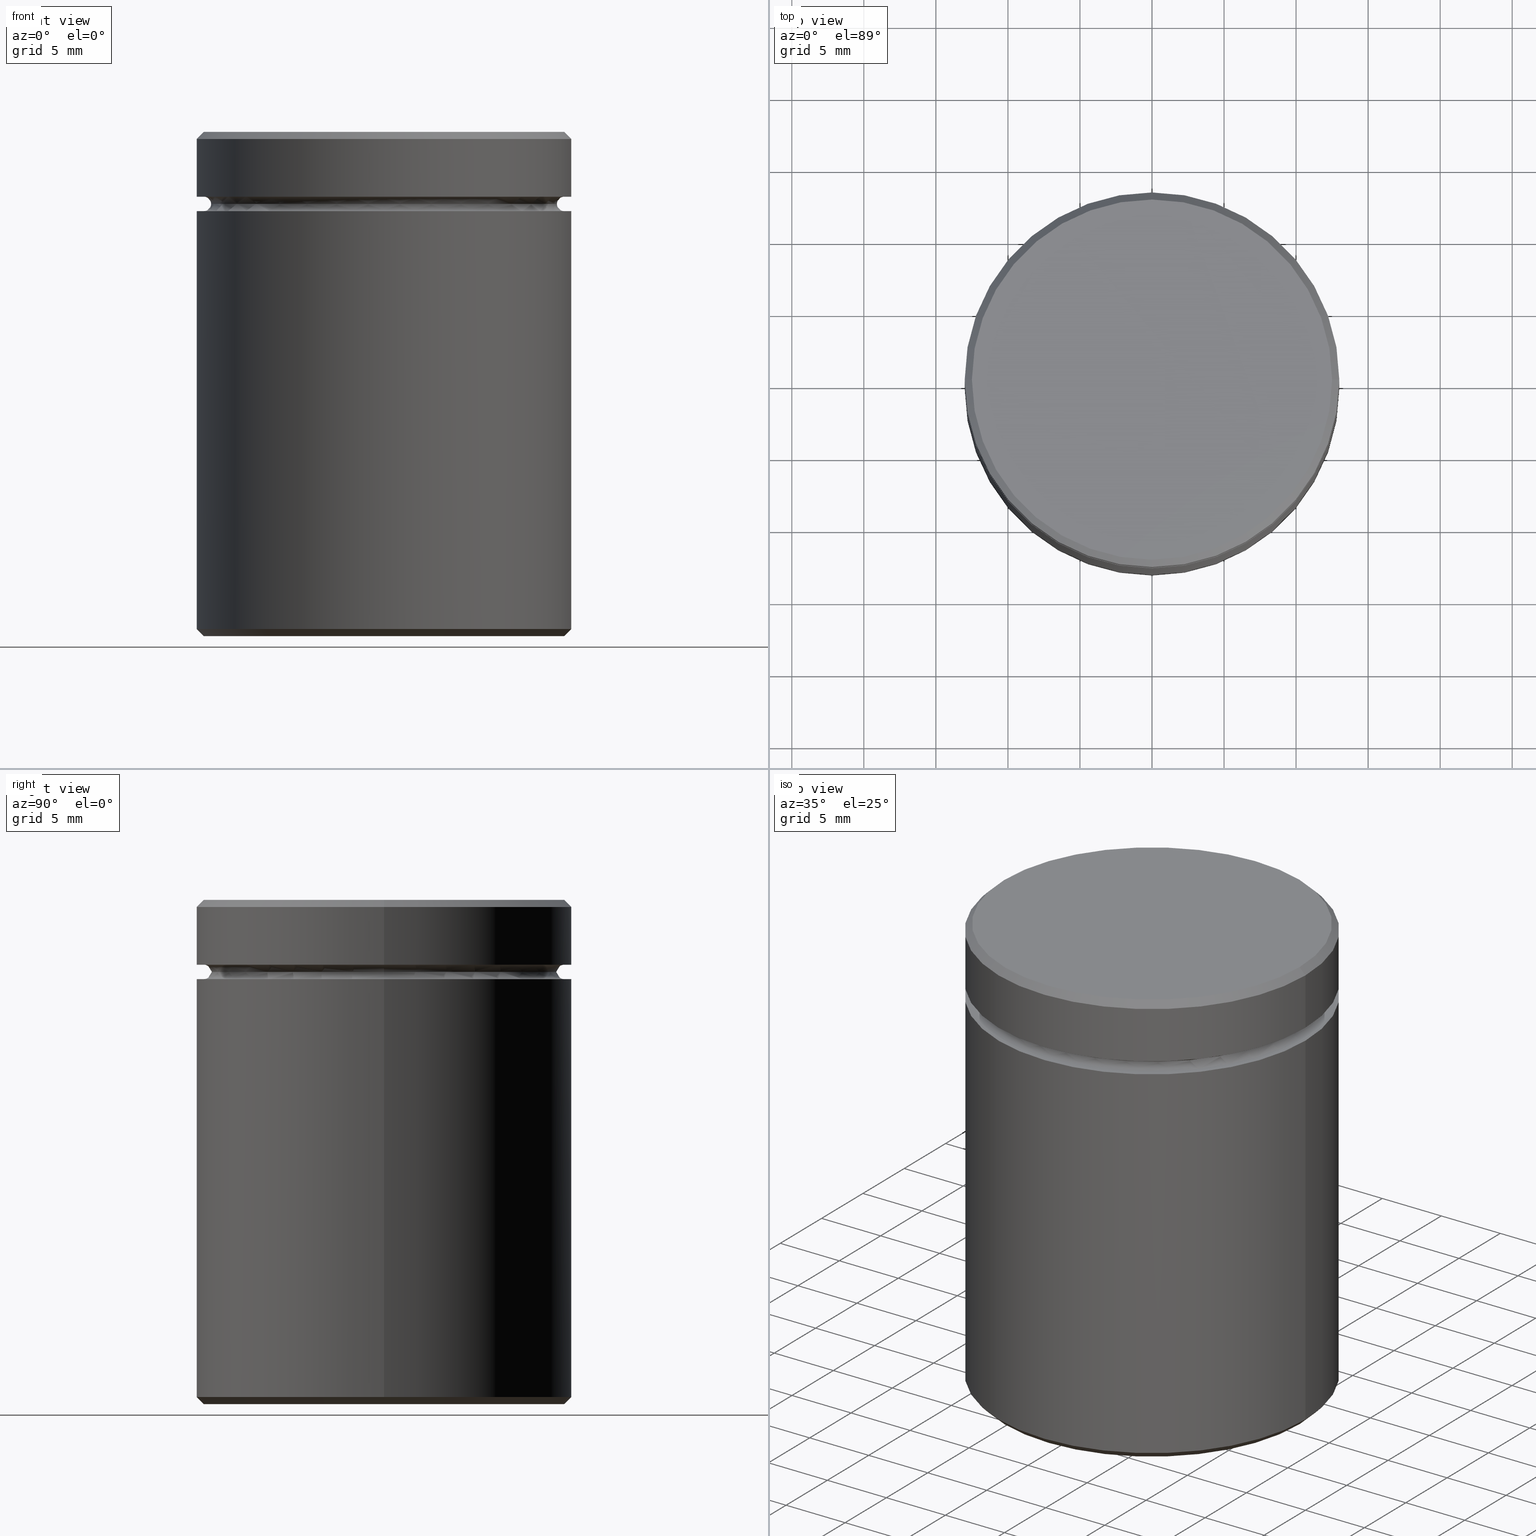
[diagram: canonical four-view strip — front | top / right | iso, engineering-drawing reading convention]
A machine part, canonical four-view strip (front | top / right | iso — engineering-drawing reading convention). The complete STEP part file that produces these views, byte-faithful:
ISO-10303-21;
HEADER;
FILE_DESCRIPTION (( 'STEP AP203' ),
    '1' );
FILE_NAME ('26eb.STEP',
    '2024-01-02T19:38:00',
    ( '' ),
    ( '' ),
    'SwSTEP 2.0',
    'SolidWorks 2019',
    '' );
FILE_SCHEMA (( 'CONFIG_CONTROL_DESIGN' ));
ENDSEC;

DATA;
#1 = DIRECTION ( 'NONE',  ( -1.000000000000000000, 0.000000000000000000, 0.000000000000000000 ) ) ;
#2 = VERTEX_POINT ( 'NONE', #400 ) ;
#3 = CC_DESIGN_PERSON_AND_ORGANIZATION_ASSIGNMENT ( #353, #370, ( #383 ) ) ;
#4 = PLANE ( 'NONE',  #371 ) ;
#5 = CARTESIAN_POINT ( 'NONE',  ( -13.00000000000000000, 1.592040838891559095E-15, -34.49999999999999289 ) ) ;
#6 = VERTEX_POINT ( 'NONE', #184 ) ;
#7 = EDGE_LOOP ( 'NONE', ( #503, #127 ) ) ;
#8 = PRODUCT_DEFINITION_SHAPE ( 'NONE', 'NONE',  #383 ) ;
#9 = EDGE_CURVE ( 'NONE', #316, #37, #460, .T. ) ;
#10 = LINE ( 'NONE', #172, #146 ) ;
#11 = ORIENTED_EDGE ( 'NONE', *, *, #19, .T. ) ;
#12 = CALENDAR_DATE ( 2024, 2, 1 ) ;
#13 = DIRECTION ( 'NONE',  ( 1.000000000000000000, 0.000000000000000000, 0.000000000000000000 ) ) ;
#14 = DIRECTION ( 'NONE',  ( -0.000000000000000000, -0.000000000000000000, 1.000000000000000000 ) ) ;
#15 = CARTESIAN_POINT ( 'NONE',  ( 0.000000000000000000, 0.000000000000000000, -5.000000000000000888 ) ) ;
#16 = AXIS2_PLACEMENT_3D ( 'NONE', #267, #398, #1 ) ;
#17 = CIRCLE ( 'NONE', #110, 7.500000000000000000 ) ;
#18 = DIRECTION ( 'NONE',  ( -0.000000000000000000, -0.000000000000000000, 1.000000000000000000 ) ) ;
#19 = EDGE_CURVE ( 'NONE', #553, #402, #295, .T. ) ;
#20 = DIRECTION ( 'NONE',  ( 0.000000000000000000, 0.000000000000000000, -1.000000000000000000 ) ) ;
#21 = CARTESIAN_POINT ( 'NONE',  ( 0.000000000000000000, 0.000000000000000000, 0.000000000000000000 ) ) ;
#22 = DIRECTION ( 'NONE',  ( -0.000000000000000000, -0.000000000000000000, 1.000000000000000000 ) ) ;
#23 = CC_DESIGN_APPROVAL ( #102, ( #560 ) ) ;
#24 = DIRECTION ( 'NONE',  ( -1.000000000000000000, 0.000000000000000000, 0.000000000000000000 ) ) ;
#25 = AXIS2_PLACEMENT_3D ( 'NONE', #61, #66, #463 ) ;
#26 = CARTESIAN_POINT ( 'NONE',  ( 13.00000000000000000, 0.000000000000000000, -0.5000000000000073275 ) ) ;
#27 = EDGE_CURVE ( 'NONE', #355, #352, #338, .T. ) ;
#28 = DIRECTION ( 'NONE',  ( 1.000000000000000000, 0.000000000000000000, 0.000000000000000000 ) ) ;
#29 = DIRECTION ( 'NONE',  ( -0.000000000000000000, -0.000000000000000000, -1.000000000000000000 ) ) ;
#30 = CIRCLE ( 'NONE', #561, 12.49999999999999112 ) ;
#31 = DIRECTION ( 'NONE',  ( 0.000000000000000000, 0.000000000000000000, -1.000000000000000000 ) ) ;
#32 = EDGE_CURVE ( 'NONE', #37, #316, #491, .T. ) ;
#33 = DIRECTION ( 'NONE',  ( -0.000000000000000000, -0.000000000000000000, 1.000000000000000000 ) ) ;
#34 = VERTEX_POINT ( 'NONE', #454 ) ;
#35 = AXIS2_PLACEMENT_3D ( 'NONE', #118, #345, #509 ) ;
#36 = CIRCLE ( 'NONE', #163, 0.5000000000000004441 ) ;
#37 = VERTEX_POINT ( 'NONE', #545 ) ;
#38 = SECURITY_CLASSIFICATION_LEVEL ( 'unclassified' ) ;
#39 = DIRECTION ( 'NONE',  ( 0.000000000000000000, 0.000000000000000000, -1.000000000000000000 ) ) ;
#40 = ORIENTED_EDGE ( 'NONE', *, *, #97, .T. ) ;
#41 = ORIENTED_EDGE ( 'NONE', *, *, #290, .F. ) ;
#42 = DIRECTION ( 'NONE',  ( -0.000000000000000000, -0.000000000000000000, 1.000000000000000000 ) ) ;
#43 = CC_DESIGN_SECURITY_CLASSIFICATION ( #472, ( #560 ) ) ;
#44 = ORIENTED_EDGE ( 'NONE', *, *, #106, .T. ) ;
#45 = DIRECTION ( 'NONE',  ( -0.7071067811865487940, 0.000000000000000000, -0.7071067811865463515 ) ) ;
#46 = AXIS2_PLACEMENT_3D ( 'NONE', #421, #141, #291 ) ;
#47 = AXIS2_PLACEMENT_3D ( 'NONE', #499, #104, #331 ) ;
#48 = CARTESIAN_POINT ( 'NONE',  ( 0.000000000000000000, 0.000000000000000000, -5.500000000000000000 ) ) ;
#49 = CIRCLE ( 'NONE', #384, 13.00000000000000000 ) ;
#50 = ORIENTED_EDGE ( 'NONE', *, *, #149, .F. ) ;
#51 = ORIENTED_EDGE ( 'NONE', *, *, #405, .T. ) ;
#52 = ADVANCED_FACE ( 'NONE', ( #153 ), #156, .F. ) ;
#53 = CARTESIAN_POINT ( 'NONE',  ( 0.000000000000000000, 0.000000000000000000, -34.49999999999999289 ) ) ;
#54 = ORIENTED_EDGE ( 'NONE', *, *, #557, .T. ) ;
#55 = COORDINATED_UNIVERSAL_TIME_OFFSET ( 1, 0, .AHEAD. ) ;
#56 = FACE_OUTER_BOUND ( 'NONE', #126, .T. ) ;
#57 = VERTEX_POINT ( 'NONE', #322 ) ;
#58 = EDGE_LOOP ( 'NONE', ( #148, #181, #136, #160 ) ) ;
#59 = CALENDAR_DATE ( 2024, 2, 1 ) ;
#60 = CARTESIAN_POINT ( 'NONE',  ( 0.000000000000000000, 0.000000000000000000, -4.999999999999999112 ) ) ;
#61 = CARTESIAN_POINT ( 'NONE',  ( 0.000000000000000000, 13.00000000000000000, -4.500000000000000888 ) ) ;
#62 = ADVANCED_FACE ( 'NONE', ( #332 ), #551, .T. ) ;
#63 = PERSON_AND_ORGANIZATION ( #254, #242 ) ;
#64 = CARTESIAN_POINT ( 'NONE',  ( 13.00000000000000000, 0.000000000000000000, -4.500000000000000888 ) ) ;
#65 = DIRECTION ( 'NONE',  ( -1.000000000000000000, -1.224646799147353454E-16, 0.000000000000000000 ) ) ;
#66 = DIRECTION ( 'NONE',  ( 0.000000000000000000, 0.000000000000000000, -1.000000000000000000 ) ) ;
#67 = CARTESIAN_POINT ( 'NONE',  ( 0.000000000000000000, 0.000000000000000000, 0.000000000000000000 ) ) ;
#68 = EDGE_CURVE ( 'NONE', #449, #342, #552, .T. ) ;
#69 = FACE_OUTER_BOUND ( 'NONE', #92, .T. ) ;
#70 = CIRCLE ( 'NONE', #134, 0.5000000000000004441 ) ;
#71 = CARTESIAN_POINT ( 'NONE',  ( -13.00000000000000000, 1.592040838891559095E-15, -4.500000000000000888 ) ) ;
#72 = EDGE_LOOP ( 'NONE', ( #83, #225, #434, #307 ) ) ;
#73 = DIRECTION ( 'NONE',  ( -1.000000000000000000, 0.000000000000000000, 0.000000000000000000 ) ) ;
#74 = LOCAL_TIME ( 20, 38, 0.000000000000000000, #408 ) ;
#75 = EDGE_CURVE ( 'NONE', #355, #34, #541, .T. ) ;
#76 = AXIS2_PLACEMENT_3D ( 'NONE', #536, #42, #485 ) ;
#77 = CARTESIAN_POINT ( 'NONE',  ( 0.000000000000000000, 0.000000000000000000, -16.00000000000000355 ) ) ;
#78 = PRODUCT ( '26eb', '26eb', '', ( #525 ) ) ;
#79 = DIRECTION ( 'NONE',  ( -0.000000000000000000, -0.000000000000000000, 1.000000000000000000 ) ) ;
#80 = ADVANCED_FACE ( 'NONE', ( #238 ), #520, .T. ) ;
#81 = APPROVAL_ROLE ( '' ) ;
#82 = CARTESIAN_POINT ( 'NONE',  ( 12.49999999999999112, 1.530808498934190141E-15, 0.000000000000000000 ) ) ;
#83 = ORIENTED_EDGE ( 'NONE', *, *, #32, .F. ) ;
#84 = CC_DESIGN_APPROVAL ( #196, ( #383 ) ) ;
#85 = VECTOR ( 'NONE', #45, 1000.000000000000000 ) ;
#86 = AXIS2_PLACEMENT_3D ( 'NONE', #53, #182, #356 ) ;
#87 = PERSON_AND_ORGANIZATION ( #254, #242 ) ;
#88 = DIRECTION ( 'NONE',  ( 0.000000000000000000, 0.000000000000000000, -1.000000000000000000 ) ) ;
#89 = ORIENTED_EDGE ( 'NONE', *, *, #475, .T. ) ;
#90 = ORIENTED_EDGE ( 'NONE', *, *, #248, .T. ) ;
#91 = CARTESIAN_POINT ( 'NONE',  ( 13.00000000000000000, 0.000000000000000000, -34.49999999999999289 ) ) ;
#92 = EDGE_LOOP ( 'NONE', ( #527, #488 ) ) ;
#93 = EDGE_LOOP ( 'NONE', ( #132, #90, #41, #538 ) ) ;
#94 = UNCERTAINTY_MEASURE_WITH_UNIT (LENGTH_MEASURE( 1.000000000000000082E-05 ), #203, 'distance_accuracy_value', 'NONE');
#95 = LINE ( 'NONE', #207, #85 ) ;
#96 = VERTEX_POINT ( 'NONE', #159 ) ;
#97 = EDGE_CURVE ( 'NONE', #2, #361, #514, .T. ) ;
#98 = CIRCLE ( 'NONE', #554, 12.50000000000000000 ) ;
#99 = DIRECTION ( 'NONE',  ( 0.000000000000000000, -0.000000000000000000, 1.000000000000000000 ) ) ;
#100 = DIRECTION ( 'NONE',  ( 0.000000000000000000, 0.000000000000000000, -1.000000000000000000 ) ) ;
#101 = DIRECTION ( 'NONE',  ( 0.000000000000000000, 0.000000000000000000, 1.000000000000000000 ) ) ;
#102 = APPROVAL ( #374, 'NEUR�EN�' ) ;
#103 = DIRECTION ( 'NONE',  ( 0.000000000000000000, 0.000000000000000000, -1.000000000000000000 ) ) ;
#104 = DIRECTION ( 'NONE',  ( -0.000000000000000000, -0.000000000000000000, -1.000000000000000000 ) ) ;
#105 = PERSON_AND_ORGANIZATION_ROLE ( 'design_supplier' ) ;
#106 = EDGE_CURVE ( 'NONE', #361, #2, #262, .T. ) ;
#107 = DIRECTION ( 'NONE',  ( -0.7071067811865487940, 8.659560562354950115E-17, 0.7071067811865463515 ) ) ;
#108 = DATE_AND_TIME ( #308, #154 ) ;
#109 = PLANE ( 'NONE',  #25 ) ;
#110 = AXIS2_PLACEMENT_3D ( 'NONE', #195, #166, #122 ) ;
#111 = CARTESIAN_POINT ( 'NONE',  ( 0.000000000000000000, 0.000000000000000000, -4.500000000000000888 ) ) ;
#112 = APPROVAL_PERSON_ORGANIZATION ( #417, #165, #222 ) ;
#113 = EDGE_CURVE ( 'NONE', #57, #553, #95, .T. ) ;
#114 = ORIENTED_EDGE ( 'NONE', *, *, #106, .F. ) ;
#115 = CARTESIAN_POINT ( 'NONE',  ( 0.000000000000000000, 0.000000000000000000, 0.000000000000000000 ) ) ;
#116 = DIRECTION ( 'NONE',  ( -1.000000000000000000, 0.000000000000000000, 0.000000000000000000 ) ) ;
#117 = AXIS2_PLACEMENT_3D ( 'NONE', #292, #382, #379 ) ;
#118 = CARTESIAN_POINT ( 'NONE',  ( 0.000000000000000000, 0.000000000000000000, -35.00000000000000000 ) ) ;
#119 = CYLINDRICAL_SURFACE ( 'NONE', #123, 7.500000000000000000 ) ;
#120 = CARTESIAN_POINT ( 'NONE',  ( -12.50000000000000000, 0.000000000000000000, -5.000000000000000888 ) ) ;
#121 = EDGE_CURVE ( 'NONE', #208, #445, #416, .T. ) ;
#122 = DIRECTION ( 'NONE',  ( -1.000000000000000000, 0.000000000000000000, 0.000000000000000000 ) ) ;
#123 = AXIS2_PLACEMENT_3D ( 'NONE', #161, #519, #116 ) ;
#124 = FACE_OUTER_BOUND ( 'NONE', #441, .T. ) ;
#125 = ORIENTED_EDGE ( 'NONE', *, *, #121, .F. ) ;
#126 = EDGE_LOOP ( 'NONE', ( #364, #419, #535, #500 ) ) ;
#127 = ORIENTED_EDGE ( 'NONE', *, *, #396, .T. ) ;
#128 = EDGE_CURVE ( 'NONE', #96, #208, #10, .T. ) ;
#129 = PERSON_AND_ORGANIZATION_ROLE ( 'creator' ) ;
#130 = DATE_AND_TIME ( #59, #369 ) ;
#131 = DIRECTION ( 'NONE',  ( -0.000000000000000000, -0.000000000000000000, 1.000000000000000000 ) ) ;
#132 = ORIENTED_EDGE ( 'NONE', *, *, #557, .F. ) ;
#133 = EDGE_LOOP ( 'NONE', ( #481, #216, #443, #269 ) ) ;
#134 = AXIS2_PLACEMENT_3D ( 'NONE', #360, #534, #540 ) ;
#135 = CYLINDRICAL_SURFACE ( 'NONE', #205, 13.00000000000000000 ) ;
#136 = ORIENTED_EDGE ( 'NONE', *, *, #19, .F. ) ;
#137 = LINE ( 'NONE', #411, #395 ) ;
#138 = ADVANCED_FACE ( 'NONE', ( #362 ), #490, .T. ) ;
#139 = ORIENTED_EDGE ( 'NONE', *, *, #405, .F. ) ;
#140 = DIRECTION ( 'NONE',  ( 1.000000000000000000, 0.000000000000000000, 0.000000000000000000 ) ) ;
#141 = DIRECTION ( 'NONE',  ( -0.000000000000000000, -0.000000000000000000, 1.000000000000000000 ) ) ;
#142 = EDGE_LOOP ( 'NONE', ( #277, #173, #40, #399 ) ) ;
#143 = ORIENTED_EDGE ( 'NONE', *, *, #414, .T. ) ;
#144 = DIRECTION ( 'NONE',  ( 1.000000000000000000, 0.000000000000000000, 0.000000000000000000 ) ) ;
#145 = DIRECTION ( 'NONE',  ( 1.000000000000000000, 0.000000000000000000, 0.000000000000000000 ) ) ;
#146 = VECTOR ( 'NONE', #179, 1000.000000000000000 ) ;
#147 = CARTESIAN_POINT ( 'NONE',  ( -12.50000000000000000, 0.000000000000000000, -4.500000000000000888 ) ) ;
#148 = ORIENTED_EDGE ( 'NONE', *, *, #302, .F. ) ;
#149 = EDGE_CURVE ( 'NONE', #57, #569, #230, .T. ) ;
#150 = DIRECTION ( 'NONE',  ( 1.000000000000000000, 0.000000000000000000, 0.000000000000000000 ) ) ;
#151 = APPROVAL_STATUS ( 'not_yet_approved' ) ;
#152 = FACE_BOUND ( 'NONE', #533, .T. ) ;
#153 = FACE_OUTER_BOUND ( 'NONE', #93, .T. ) ;
#154 = LOCAL_TIME ( 20, 38, 0.000000000000000000, #55 ) ;
#155 = CARTESIAN_POINT ( 'NONE',  ( 0.000000000000000000, 0.000000000000000000, -5.500000000000000000 ) ) ;
#156 = TOROIDAL_SURFACE ( 'NONE', #213, 12.50000000000000000, 0.5000000000000000000 ) ;
#157 = PLANE ( 'NONE',  #357 ) ;
#158 = EDGE_CURVE ( 'NONE', #449, #553, #137, .T. ) ;
#159 = CARTESIAN_POINT ( 'NONE',  ( 13.00000000000000000, 0.000000000000000000, -34.49999999999999289 ) ) ;
#160 = ORIENTED_EDGE ( 'NONE', *, *, #113, .F. ) ;
#161 = CARTESIAN_POINT ( 'NONE',  ( 0.000000000000000000, 0.000000000000000000, -16.00000000000000355 ) ) ;
#162 = AXIS2_PLACEMENT_3D ( 'NONE', #48, #440, #406 ) ;
#163 = AXIS2_PLACEMENT_3D ( 'NONE', #412, #420, #20 ) ;
#164 = DIRECTION ( 'NONE',  ( -1.000000000000000000, 0.000000000000000000, 0.000000000000000000 ) ) ;
#165 = APPROVAL ( #180, 'NEUR�EN�' ) ;
#166 = DIRECTION ( 'NONE',  ( 0.000000000000000000, 0.000000000000000000, -1.000000000000000000 ) ) ;
#167 = DIRECTION ( 'NONE',  ( 1.000000000000000000, 0.000000000000000000, 0.000000000000000000 ) ) ;
#168 = ADVANCED_FACE ( 'NONE', ( #315 ), #135, .T. ) ;
#169 = VERTEX_POINT ( 'NONE', #5 ) ;
#170 = AXIS2_PLACEMENT_3D ( 'NONE', #549, #333, #455 ) ;
#171 = APPROVAL_DATE_TIME ( #130, #196 ) ;
#172 = CARTESIAN_POINT ( 'NONE',  ( 13.00000000000000000, 0.000000000000000000, 0.000000000000000000 ) ) ;
#173 = ORIENTED_EDGE ( 'NONE', *, *, #565, .T. ) ;
#174 = CARTESIAN_POINT ( 'NONE',  ( 0.000000000000000000, 12.00000000000000000, -5.500000000000000000 ) ) ;
#175 = VECTOR ( 'NONE', #266, 1000.000000000000000 ) ;
#176 = EDGE_CURVE ( 'NONE', #169, #445, #401, .T. ) ;
#177 = CARTESIAN_POINT ( 'NONE',  ( 0.000000000000000000, 0.000000000000000000, -5.000000000000000888 ) ) ;
#178 = ORIENTED_EDGE ( 'NONE', *, *, #565, .F. ) ;
#179 = DIRECTION ( 'NONE',  ( -0.000000000000000000, -0.000000000000000000, 1.000000000000000000 ) ) ;
#180 = APPROVAL_STATUS ( 'not_yet_approved' ) ;
#181 = ORIENTED_EDGE ( 'NONE', *, *, #257, .T. ) ;
#182 = DIRECTION ( 'NONE',  ( -0.000000000000000000, -0.000000000000000000, 1.000000000000000000 ) ) ;
#183 = ADVANCED_FACE ( 'NONE', ( #317, #312 ), #4, .T. ) ;
#184 = CARTESIAN_POINT ( 'NONE',  ( 12.50000000000000000, 0.000000000000000000, -5.500000000000000000 ) ) ;
#185 = CIRCLE ( 'NONE', #359, 12.50000000000000000 ) ;
#186 = LINE ( 'NONE', #240, #199 ) ;
#187 = ADVANCED_BREP_SHAPE_REPRESENTATION ( '26eb', ( #306, #261 ), #299 ) ;
#188 = DIRECTION ( 'NONE',  ( -0.000000000000000000, -0.000000000000000000, 1.000000000000000000 ) ) ;
#189 = ORIENTED_EDGE ( 'NONE', *, *, #444, .T. ) ;
#190 = PLANE ( 'NONE',  #117 ) ;
#191 = AXIS2_PLACEMENT_3D ( 'NONE', #60, #234, #13 ) ;
#192 = DIRECTION ( 'NONE',  ( 1.000000000000000000, 0.000000000000000000, 0.000000000000000000 ) ) ;
#193 = CARTESIAN_POINT ( 'NONE',  ( 7.500000000000000000, 9.184850993605147944E-16, -16.00000000000000355 ) ) ;
#194 = ORIENTED_EDGE ( 'NONE', *, *, #158, .T. ) ;
#195 = CARTESIAN_POINT ( 'NONE',  ( 0.000000000000000000, 0.000000000000000000, -16.00000000000000355 ) ) ;
#196 = APPROVAL ( #151, 'NEUR�EN�' ) ;
#197 = DIRECTION ( 'NONE',  ( -0.000000000000000000, -0.000000000000000000, 1.000000000000000000 ) ) ;
#198 = EDGE_LOOP ( 'NONE', ( #178, #348, #189, #44 ) ) ;
#199 = VECTOR ( 'NONE', #107, 1000.000000000000000 ) ;
#200 = CARTESIAN_POINT ( 'NONE',  ( 0.000000000000000000, 0.000000000000000000, 0.000000000000000000 ) ) ;
#201 = ADVANCED_FACE ( 'NONE', ( #212 ), #341, .F. ) ;
#202 = CYLINDRICAL_SURFACE ( 'NONE', #494, 13.00000000000000000 ) ;
#203 =( LENGTH_UNIT ( ) NAMED_UNIT ( * ) SI_UNIT ( .MILLI., .METRE. ) );
#204 = AXIS2_PLACEMENT_3D ( 'NONE', #67, #241, #24 ) ;
#205 = AXIS2_PLACEMENT_3D ( 'NONE', #209, #14, #271 ) ;
#206 = DATE_AND_TIME ( #461, #74 ) ;
#207 = CARTESIAN_POINT ( 'NONE',  ( -12.49999999999999112, 0.000000000000000000, 0.000000000000000000 ) ) ;
#208 = VERTEX_POINT ( 'NONE', #278 ) ;
#209 = CARTESIAN_POINT ( 'NONE',  ( 0.000000000000000000, 0.000000000000000000, 0.000000000000000000 ) ) ;
#210 = ORIENTED_EDGE ( 'NONE', *, *, #330, .T. ) ;
#211 = ADVANCED_FACE ( 'NONE', ( #264 ), #542, .F. ) ;
#212 = FACE_OUTER_BOUND ( 'NONE', #133, .T. ) ;
#213 = AXIS2_PLACEMENT_3D ( 'NONE', #415, #504, #232 ) ;
#214 = CC_DESIGN_DATE_AND_TIME_ASSIGNMENT ( #206, #397, ( #383 ) ) ;
#215 = AXIS2_PLACEMENT_3D ( 'NONE', #15, #502, #544 ) ;
#216 = ORIENTED_EDGE ( 'NONE', *, *, #27, .F. ) ;
#217 = LINE ( 'NONE', #91, #175 ) ;
#218 = ORIENTED_EDGE ( 'NONE', *, *, #158, .F. ) ;
#219 = VERTEX_POINT ( 'NONE', #147 ) ;
#220 = EDGE_CURVE ( 'NONE', #316, #96, #217, .T. ) ;
#221 = CARTESIAN_POINT ( 'NONE',  ( 0.000000000000000000, 0.000000000000000000, 0.000000000000000000 ) ) ;
#222 = APPROVAL_ROLE ( '' ) ;
#223 = CARTESIAN_POINT ( 'NONE',  ( 13.00000000000000000, 0.000000000000000000, 0.000000000000000000 ) ) ;
#224 = ORIENTED_EDGE ( 'NONE', *, *, #515, .T. ) ;
#225 = ORIENTED_EDGE ( 'NONE', *, *, #363, .T. ) ;
#226 = APPROVAL_PERSON_ORGANIZATION ( #505, #102, #273 ) ;
#227 = DATE_AND_TIME ( #12, #447 ) ;
#228 = ORIENTED_EDGE ( 'NONE', *, *, #548, .T. ) ;
#229 = AXIS2_PLACEMENT_3D ( 'NONE', #376, #506, #283 ) ;
#230 = CIRCLE ( 'NONE', #76, 12.49999999999999112 ) ;
#231 = CARTESIAN_POINT ( 'NONE',  ( 12.00000000000000000, 0.000000000000000000, -4.999999999999999112 ) ) ;
#232 = DIRECTION ( 'NONE',  ( 1.000000000000000000, 0.000000000000000000, 0.000000000000000000 ) ) ;
#233 = PERSON_AND_ORGANIZATION ( #254, #242 ) ;
#234 = DIRECTION ( 'NONE',  ( -0.000000000000000000, -0.000000000000000000, 1.000000000000000000 ) ) ;
#235 = ORIENTED_EDGE ( 'NONE', *, *, #466, .F. ) ;
#236 = AXIS2_PLACEMENT_3D ( 'NONE', #77, #429, #256 ) ;
#237 = DIRECTION ( 'NONE',  ( 1.000000000000000000, 0.000000000000000000, 0.000000000000000000 ) ) ;
#238 = FACE_OUTER_BOUND ( 'NONE', #58, .T. ) ;
#239 = ADVANCED_FACE ( 'NONE', ( #451 ), #296, .T. ) ;
#240 = CARTESIAN_POINT ( 'NONE',  ( -13.00000000000000000, 1.592040838891559095E-15, -34.49999999999999289 ) ) ;
#241 = DIRECTION ( 'NONE',  ( 0.000000000000000000, 0.000000000000000000, -1.000000000000000000 ) ) ;
#242 = ORGANIZATION ( 'NEUR�EN�', 'NEUR�EN�', '' ) ;
#243 = AXIS2_PLACEMENT_3D ( 'NONE', #367, #459, #270 ) ;
#244 = CARTESIAN_POINT ( 'NONE',  ( 0.000000000000000000, 0.000000000000000000, -5.500000000000000000 ) ) ;
#245 = CIRCLE ( 'NONE', #325, 0.5000000000000004441 ) ;
#246 = ORIENTED_EDGE ( 'NONE', *, *, #176, .T. ) ;
#247 = DIRECTION ( 'NONE',  ( -0.000000000000000000, -1.000000000000000000, -0.000000000000000000 ) ) ;
#248 = EDGE_CURVE ( 'NONE', #352, #309, #70, .T. ) ;
#249 = DIRECTION ( 'NONE',  ( -0.000000000000000000, -0.000000000000000000, 1.000000000000000000 ) ) ;
#250 = DIRECTION ( 'NONE',  ( -1.000000000000000000, 0.000000000000000000, 0.000000000000000000 ) ) ;
#251 = APPLICATION_CONTEXT ( 'configuration controlled 3d designs of mechanical parts and assemblies' ) ;
#252 = CIRCLE ( 'NONE', #288, 12.50000000000000000 ) ;
#253 = AXIS2_PLACEMENT_3D ( 'NONE', #521, #31, #250 ) ;
#254 = PERSON ( 'NEUR�EN�', 'NEUR�EN�', 'NEUR�EN�', ('NEUR�EN�'), ('NEUR�EN�'), ('NEUR�EN�') ) ;
#255 = ORIENTED_EDGE ( 'NONE', *, *, #548, .F. ) ;
#256 = DIRECTION ( 'NONE',  ( -1.000000000000000000, 0.000000000000000000, -0.000000000000000000 ) ) ;
#257 = EDGE_CURVE ( 'NONE', #569, #402, #480, .T. ) ;
#258 = LINE ( 'NONE', #426, #285 ) ;
#259 = ORIENTED_EDGE ( 'NONE', *, *, #414, .F. ) ;
#260 = DIRECTION ( 'NONE',  ( 0.7071067811865487940, 8.659560562354950115E-17, -0.7071067811865463515 ) ) ;
#261 = AXIS2_PLACEMENT_3D ( 'NONE', #328, #101, #144 ) ;
#262 = CIRCLE ( 'NONE', #16, 7.500000000000000000 ) ;
#263 = ORIENTED_EDGE ( 'NONE', *, *, #128, .F. ) ;
#264 = FACE_OUTER_BOUND ( 'NONE', #489, .T. ) ;
#265 = EDGE_CURVE ( 'NONE', #309, #6, #252, .T. ) ;
#266 = DIRECTION ( 'NONE',  ( 0.7071067811865487940, 0.000000000000000000, 0.7071067811865463515 ) ) ;
#267 = CARTESIAN_POINT ( 'NONE',  ( 0.000000000000000000, 0.000000000000000000, -35.00000000000000000 ) ) ;
#268 = CC_DESIGN_DATE_AND_TIME_ASSIGNMENT ( #227, #349, ( #472 ) ) ;
#269 = ORIENTED_EDGE ( 'NONE', *, *, #265, .F. ) ;
#270 = DIRECTION ( 'NONE',  ( -1.000000000000000000, 0.000000000000000000, 0.000000000000000000 ) ) ;
#271 = DIRECTION ( 'NONE',  ( 1.000000000000000000, 0.000000000000000000, 0.000000000000000000 ) ) ;
#272 = ORIENTED_EDGE ( 'NONE', *, *, #487, .T. ) ;
#273 = APPROVAL_ROLE ( '' ) ;
#274 = AXIS2_PLACEMENT_3D ( 'NONE', #403, #486, #354 ) ;
#275 = EDGE_CURVE ( 'NONE', #355, #6, #36, .T. ) ;
#276 = CARTESIAN_POINT ( 'NONE',  ( 0.000000000000000000, 0.000000000000000000, -0.5000000000000073275 ) ) ;
#277 = ORIENTED_EDGE ( 'NONE', *, *, #475, .F. ) ;
#278 = CARTESIAN_POINT ( 'NONE',  ( 13.00000000000000000, 0.000000000000000000, -5.500000000000000000 ) ) ;
#279 = DIRECTION ( 'NONE',  ( -1.000000000000000000, 0.000000000000000000, 0.000000000000000000 ) ) ;
#280 = COORDINATED_UNIVERSAL_TIME_OFFSET ( 1, 0, .AHEAD. ) ;
#281 = CARTESIAN_POINT ( 'NONE',  ( 12.49999999999999112, 0.000000000000000000, -35.00000000000000000 ) ) ;
#282 = COORDINATED_UNIVERSAL_TIME_OFFSET ( 1, 0, .AHEAD. ) ;
#283 = DIRECTION ( 'NONE',  ( -1.000000000000000000, 0.000000000000000000, 0.000000000000000000 ) ) ;
#284 = DIRECTION ( 'NONE',  ( 0.000000000000000000, 0.000000000000000000, -1.000000000000000000 ) ) ;
#285 = VECTOR ( 'NONE', #29, 1000.000000000000000 ) ;
#286 = APPROVAL_DATE_TIME ( #108, #102 ) ;
#287 = AXIS2_PLACEMENT_3D ( 'NONE', #276, #103, #145 ) ;
#288 = AXIS2_PLACEMENT_3D ( 'NONE', #438, #39, #192 ) ;
#289 = DIRECTION ( 'NONE',  ( -0.000000000000000000, -0.000000000000000000, 1.000000000000000000 ) ) ;
#290 = EDGE_CURVE ( 'NONE', #6, #309, #423, .T. ) ;
#291 = DIRECTION ( 'NONE',  ( 1.000000000000000000, 0.000000000000000000, 0.000000000000000000 ) ) ;
#292 = CARTESIAN_POINT ( 'NONE',  ( 0.000000000000000000, 13.00000000000000000, -35.00000000000000000 ) ) ;
#293 = CARTESIAN_POINT ( 'NONE',  ( -12.50000000000000000, 1.530808498934191521E-15, -5.500000000000000000 ) ) ;
#294 = ADVANCED_FACE ( 'NONE', ( #69, #422 ), #190, .T. ) ;
#295 = CIRCLE ( 'NONE', #287, 13.00000000000000000 ) ;
#296 = CONICAL_SURFACE ( 'NONE', #86, 13.00000000000000000, 0.7853981633974500554 ) ;
#297 = CARTESIAN_POINT ( 'NONE',  ( -13.00000000000000000, 1.592040838891559095E-15, -0.5000000000000073275 ) ) ;
#298 = DIRECTION ( 'NONE',  ( -0.000000000000000000, -0.000000000000000000, 1.000000000000000000 ) ) ;
#299 =( GEOMETRIC_REPRESENTATION_CONTEXT ( 3 ) GLOBAL_UNCERTAINTY_ASSIGNED_CONTEXT ( ( #94 ) ) GLOBAL_UNIT_ASSIGNED_CONTEXT ( ( #203, #513, #337 ) ) REPRESENTATION_CONTEXT ( 'NONE', 'WORKASPACE' ) );
#300 = FACE_OUTER_BOUND ( 'NONE', #72, .T. ) ;
#301 = CIRCLE ( 'NONE', #492, 13.00000000000000000 ) ;
#302 = EDGE_CURVE ( 'NONE', #569, #57, #30, .T. ) ;
#303 = CARTESIAN_POINT ( 'NONE',  ( 0.000000000000000000, 0.000000000000000000, -4.999999999999999112 ) ) ;
#304 = ORIENTED_EDGE ( 'NONE', *, *, #68, .F. ) ;
#305 = ORIENTED_EDGE ( 'NONE', *, *, #9, .F. ) ;
#306 = MANIFOLD_SOLID_BREP ( 'Zaoblit1', #394 ) ;
#307 = ORIENTED_EDGE ( 'NONE', *, *, #220, .F. ) ;
#308 = CALENDAR_DATE ( 2024, 2, 1 ) ;
#309 = VERTEX_POINT ( 'NONE', #293 ) ;
#310 = CC_DESIGN_PERSON_AND_ORGANIZATION_ASSIGNMENT ( #87, #496, ( #78 ) ) ;
#311 = COORDINATED_UNIVERSAL_TIME_OFFSET ( 1, 0, .AHEAD. ) ;
#312 = FACE_OUTER_BOUND ( 'NONE', #7, .T. ) ;
#313 = AXIS2_PLACEMENT_3D ( 'NONE', #221, #131, #532 ) ;
#314 = ORIENTED_EDGE ( 'NONE', *, *, #220, .T. ) ;
#315 = FACE_OUTER_BOUND ( 'NONE', #318, .T. ) ;
#316 = VERTEX_POINT ( 'NONE', #281 ) ;
#317 = FACE_BOUND ( 'NONE', #321, .T. ) ;
#318 = EDGE_LOOP ( 'NONE', ( #228, #194, #11, #139 ) ) ;
#319 = ORIENTED_EDGE ( 'NONE', *, *, #363, .F. ) ;
#320 = CARTESIAN_POINT ( 'NONE',  ( -13.00000000000000000, 1.592040838891559095E-15, 0.000000000000000000 ) ) ;
#321 = EDGE_LOOP ( 'NONE', ( #543, #478 ) ) ;
#322 = CARTESIAN_POINT ( 'NONE',  ( -12.49999999999999112, 0.000000000000000000, 0.000000000000000000 ) ) ;
#323 = CC_DESIGN_PERSON_AND_ORGANIZATION_ASSIGNMENT ( #233, #539, ( #472 ) ) ;
#324 = APPLICATION_PROTOCOL_DEFINITION ( 'international standard', 'config_control_design', 1994, #523 ) ;
#325 = AXIS2_PLACEMENT_3D ( 'NONE', #120, #247, #425 ) ;
#326 = AXIS2_PLACEMENT_3D ( 'NONE', #344, #346, #28 ) ;
#327 = FACE_OUTER_BOUND ( 'NONE', #198, .T. ) ;
#328 = CARTESIAN_POINT ( 'NONE',  ( 0.000000000000000000, 0.000000000000000000, 0.000000000000000000 ) ) ;
#329 = ORIENTED_EDGE ( 'NONE', *, *, #302, .T. ) ;
#330 = EDGE_CURVE ( 'NONE', #402, #553, #566, .T. ) ;
#331 = DIRECTION ( 'NONE',  ( -1.000000000000000000, 0.000000000000000000, 0.000000000000000000 ) ) ;
#332 = FACE_OUTER_BOUND ( 'NONE', #372, .T. ) ;
#333 = DIRECTION ( 'NONE',  ( 0.000000000000000000, 0.000000000000000000, -1.000000000000000000 ) ) ;
#334 = ORIENTED_EDGE ( 'NONE', *, *, #113, .T. ) ;
#335 = CARTESIAN_POINT ( 'NONE',  ( 0.000000000000000000, 0.000000000000000000, 0.000000000000000000 ) ) ;
#336 = ADVANCED_FACE ( 'NONE', ( #152, #512 ), #109, .T. ) ;
#337 =( NAMED_UNIT ( * ) SI_UNIT ( $, .STERADIAN. ) SOLID_ANGLE_UNIT ( ) );
#338 = CIRCLE ( 'NONE', #191, 12.00000000000000000 ) ;
#339 = EDGE_LOOP ( 'NONE', ( #255, #304 ) ) ;
#340 = DIRECTION ( 'NONE',  ( 1.000000000000000000, 0.000000000000000000, 0.000000000000000000 ) ) ;
#341 = TOROIDAL_SURFACE ( 'NONE', #274, 12.50000000000000000, 0.5000000000000000000 ) ;
#342 = VERTEX_POINT ( 'NONE', #64 ) ;
#343 = LINE ( 'NONE', #391, #381 ) ;
#344 = CARTESIAN_POINT ( 'NONE',  ( 0.000000000000000000, 0.000000000000000000, 0.000000000000000000 ) ) ;
#345 = DIRECTION ( 'NONE',  ( 0.000000000000000000, 0.000000000000000000, -1.000000000000000000 ) ) ;
#346 = DIRECTION ( 'NONE',  ( -0.000000000000000000, -0.000000000000000000, 1.000000000000000000 ) ) ;
#347 = VECTOR ( 'NONE', #18, 1000.000000000000000 ) ;
#348 = ORIENTED_EDGE ( 'NONE', *, *, #487, .F. ) ;
#349 = DATE_TIME_ROLE ( 'classification_date' ) ;
#350 = EDGE_LOOP ( 'NONE', ( #435, #329 ) ) ;
#351 = ADVANCED_FACE ( 'NONE', ( #56 ), #462, .F. ) ;
#352 = VERTEX_POINT ( 'NONE', #465 ) ;
#353 = PERSON_AND_ORGANIZATION ( #254, #242 ) ;
#354 = DIRECTION ( 'NONE',  ( 1.000000000000000000, 0.000000000000000000, 0.000000000000000000 ) ) ;
#355 = VERTEX_POINT ( 'NONE', #231 ) ;
#356 = DIRECTION ( 'NONE',  ( 1.000000000000000000, 0.000000000000000000, 0.000000000000000000 ) ) ;
#357 = AXIS2_PLACEMENT_3D ( 'NONE', #115, #467, #237 ) ;
#358 = ORIENTED_EDGE ( 'NONE', *, *, #257, .F. ) ;
#359 = AXIS2_PLACEMENT_3D ( 'NONE', #468, #79, #164 ) ;
#360 = CARTESIAN_POINT ( 'NONE',  ( -12.50000000000000000, 1.530808498934191521E-15, -4.999999999999999112 ) ) ;
#361 = VERTEX_POINT ( 'NONE', #510 ) ;
#362 = FACE_OUTER_BOUND ( 'NONE', #409, .T. ) ;
#363 = EDGE_CURVE ( 'NONE', #37, #169, #186, .T. ) ;
#364 = ORIENTED_EDGE ( 'NONE', *, *, #75, .F. ) ;
#365 = VERTEX_POINT ( 'NONE', #193 ) ;
#366 = CALENDAR_DATE ( 2024, 2, 1 ) ;
#367 = CARTESIAN_POINT ( 'NONE',  ( 0.000000000000000000, 0.000000000000000000, -35.00000000000000000 ) ) ;
#368 = DIRECTION ( 'NONE',  ( -1.000000000000000000, 0.000000000000000000, 0.000000000000000000 ) ) ;
#369 = LOCAL_TIME ( 20, 38, 0.000000000000000000, #280 ) ;
#370 = PERSON_AND_ORGANIZATION_ROLE ( 'creator' ) ;
#371 = AXIS2_PLACEMENT_3D ( 'NONE', #174, #99, #140 ) ;
#372 = EDGE_LOOP ( 'NONE', ( #358, #50, #334, #439 ) ) ;
#373 = DIRECTION ( 'NONE',  ( 1.000000000000000000, 0.000000000000000000, 0.000000000000000000 ) ) ;
#374 = APPROVAL_STATUS ( 'not_yet_approved' ) ;
#375 = EDGE_CURVE ( 'NONE', #34, #219, #98, .T. ) ;
#376 = CARTESIAN_POINT ( 'NONE',  ( 0.000000000000000000, 0.000000000000000000, -35.00000000000000000 ) ) ;
#377 = DIRECTION ( 'NONE',  ( -1.000000000000000000, 0.000000000000000000, 0.000000000000000000 ) ) ;
#378 = CC_DESIGN_PERSON_AND_ORGANIZATION_ASSIGNMENT ( #63, #129, ( #560 ) ) ;
#379 = DIRECTION ( 'NONE',  ( -1.000000000000000000, 0.000000000000000000, -0.000000000000000000 ) ) ;
#380 = AXIS2_PLACEMENT_3D ( 'NONE', #493, #464, #65 ) ;
#381 = VECTOR ( 'NONE', #469, 1000.000000000000000 ) ;
#382 = DIRECTION ( 'NONE',  ( 0.000000000000000000, 0.000000000000000000, -1.000000000000000000 ) ) ;
#383 = PRODUCT_DEFINITION ( 'NEZN�M�', '', #560, #446 ) ;
#384 = AXIS2_PLACEMENT_3D ( 'NONE', #473, #298, #73 ) ;
#385 = LINE ( 'NONE', #223, #347 ) ;
#386 = CC_DESIGN_PERSON_AND_ORGANIZATION_ASSIGNMENT ( #450, #105, ( #560 ) ) ;
#387 = CARTESIAN_POINT ( 'NONE',  ( 0.000000000000000000, 0.000000000000000000, -34.49999999999999289 ) ) ;
#388 = FACE_OUTER_BOUND ( 'NONE', #522, .T. ) ;
#389 = ADVANCED_FACE ( 'NONE', ( #555 ), #157, .T. ) ;
#390 = ORIENTED_EDGE ( 'NONE', *, *, #68, .T. ) ;
#391 = CARTESIAN_POINT ( 'NONE',  ( -7.500000000000000000, 0.000000000000000000, -16.00000000000000355 ) ) ;
#392 = CONICAL_SURFACE ( 'NONE', #477, 13.00000000000000000, 0.7853981633974500554 ) ;
#393 = DIRECTION ( 'NONE',  ( 1.000000000000000000, 0.000000000000000000, 0.000000000000000000 ) ) ;
#394 = CLOSED_SHELL ( 'NONE', ( #211, #52, #530, #80, #432, #138, #168, #294, #389, #470, #336, #183, #497, #427, #537, #62, #239, #201, #351 ) ) ;
#395 = VECTOR ( 'NONE', #442, 1000.000000000000000 ) ;
#396 = EDGE_CURVE ( 'NONE', #445, #208, #437, .T. ) ;
#397 = DATE_TIME_ROLE ( 'creation_date' ) ;
#398 = DIRECTION ( 'NONE',  ( 0.000000000000000000, 0.000000000000000000, -1.000000000000000000 ) ) ;
#399 = ORIENTED_EDGE ( 'NONE', *, *, #444, .F. ) ;
#400 = CARTESIAN_POINT ( 'NONE',  ( 7.500000000000000000, 9.184850993605147944E-16, -35.00000000000000000 ) ) ;
#401 = LINE ( 'NONE', #320, #430 ) ;
#402 = VERTEX_POINT ( 'NONE', #26 ) ;
#403 = CARTESIAN_POINT ( 'NONE',  ( 0.000000000000000000, 0.000000000000000000, -4.999999999999999112 ) ) ;
#404 = AXIS2_PLACEMENT_3D ( 'NONE', #177, #88, #368 ) ;
#405 = EDGE_CURVE ( 'NONE', #342, #402, #385, .T. ) ;
#406 = DIRECTION ( 'NONE',  ( 1.000000000000000000, 0.000000000000000000, 0.000000000000000000 ) ) ;
#407 = EDGE_LOOP ( 'NONE', ( #319, #305, #314, #259 ) ) ;
#408 = COORDINATED_UNIVERSAL_TIME_OFFSET ( 1, 0, .AHEAD. ) ;
#409 = EDGE_LOOP ( 'NONE', ( #224, #246, #125, #263 ) ) ;
#410 = EDGE_LOOP ( 'NONE', ( #114, #558 ) ) ;
#411 = CARTESIAN_POINT ( 'NONE',  ( -13.00000000000000000, 1.592040838891559095E-15, 0.000000000000000000 ) ) ;
#412 = CARTESIAN_POINT ( 'NONE',  ( 12.50000000000000000, 0.000000000000000000, -4.999999999999999112 ) ) ;
#413 = AXIS2_PLACEMENT_3D ( 'NONE', #516, #33, #167 ) ;
#414 = EDGE_CURVE ( 'NONE', #169, #96, #301, .T. ) ;
#415 = CARTESIAN_POINT ( 'NONE',  ( 0.000000000000000000, 0.000000000000000000, -4.999999999999999112 ) ) ;
#416 = CIRCLE ( 'NONE', #162, 13.00000000000000000 ) ;
#417 = PERSON_AND_ORGANIZATION ( #254, #242 ) ;
#418 = DIRECTION ( 'NONE',  ( -1.000000000000000000, 0.000000000000000000, 0.000000000000000000 ) ) ;
#419 = ORIENTED_EDGE ( 'NONE', *, *, #27, .T. ) ;
#420 = DIRECTION ( 'NONE',  ( 0.000000000000000000, -1.000000000000000000, 0.000000000000000000 ) ) ;
#421 = CARTESIAN_POINT ( 'NONE',  ( 0.000000000000000000, 0.000000000000000000, -4.500000000000000888 ) ) ;
#422 = FACE_BOUND ( 'NONE', #410, .T. ) ;
#423 = CIRCLE ( 'NONE', #484, 12.50000000000000000 ) ;
#424 = DIRECTION ( 'NONE',  ( -0.000000000000000000, -0.000000000000000000, 1.000000000000000000 ) ) ;
#425 = DIRECTION ( 'NONE',  ( 0.000000000000000000, 0.000000000000000000, -1.000000000000000000 ) ) ;
#426 = CARTESIAN_POINT ( 'NONE',  ( 7.500000000000000000, 9.184850993605147944E-16, -16.00000000000000355 ) ) ;
#427 = ADVANCED_FACE ( 'NONE', ( #327 ), #546, .F. ) ;
#428 = CIRCLE ( 'NONE', #550, 12.00000000000000000 ) ;
#429 = DIRECTION ( 'NONE',  ( 0.000000000000000000, 0.000000000000000000, -1.000000000000000000 ) ) ;
#430 = VECTOR ( 'NONE', #448, 1000.000000000000000 ) ;
#431 = CARTESIAN_POINT ( 'NONE',  ( -7.500000000000000000, 0.000000000000000000, -16.00000000000000355 ) ) ;
#432 = ADVANCED_FACE ( 'NONE', ( #507 ), #119, .F. ) ;
#433 = CARTESIAN_POINT ( 'NONE',  ( 12.49999999999999112, 1.561424668912874519E-15, 0.000000000000000000 ) ) ;
#434 = ORIENTED_EDGE ( 'NONE', *, *, #515, .F. ) ;
#435 = ORIENTED_EDGE ( 'NONE', *, *, #149, .T. ) ;
#436 = AXIS2_PLACEMENT_3D ( 'NONE', #21, #100, #279 ) ;
#437 = CIRCLE ( 'NONE', #531, 13.00000000000000000 ) ;
#438 = CARTESIAN_POINT ( 'NONE',  ( 0.000000000000000000, 0.000000000000000000, -5.500000000000000000 ) ) ;
#439 = ORIENTED_EDGE ( 'NONE', *, *, #330, .F. ) ;
#440 = DIRECTION ( 'NONE',  ( -0.000000000000000000, -0.000000000000000000, 1.000000000000000000 ) ) ;
#441 = EDGE_LOOP ( 'NONE', ( #218, #390, #51, #210 ) ) ;
#442 = DIRECTION ( 'NONE',  ( -0.000000000000000000, -0.000000000000000000, 1.000000000000000000 ) ) ;
#443 = ORIENTED_EDGE ( 'NONE', *, *, #275, .T. ) ;
#444 = EDGE_CURVE ( 'NONE', #547, #361, #343, .T. ) ;
#445 = VERTEX_POINT ( 'NONE', #562 ) ;
#446 = DESIGN_CONTEXT ( 'detailed design', #523, 'design' ) ;
#447 = LOCAL_TIME ( 20, 38, 0.000000000000000000, #311 ) ;
#448 = DIRECTION ( 'NONE',  ( -0.000000000000000000, -0.000000000000000000, 1.000000000000000000 ) ) ;
#449 = VERTEX_POINT ( 'NONE', #71 ) ;
#450 = PERSON_AND_ORGANIZATION ( #254, #242 ) ;
#451 = FACE_OUTER_BOUND ( 'NONE', #407, .T. ) ;
#452 = ORIENTED_EDGE ( 'NONE', *, *, #466, .T. ) ;
#453 = EDGE_CURVE ( 'NONE', #352, #219, #245, .T. ) ;
#454 = CARTESIAN_POINT ( 'NONE',  ( 12.50000000000000000, 1.530808498934191521E-15, -4.500000000000000888 ) ) ;
#455 = DIRECTION ( 'NONE',  ( 1.000000000000000000, 0.000000000000000000, 0.000000000000000000 ) ) ;
#456 = APPROVAL_DATE_TIME ( #567, #165 ) ;
#457 = DIRECTION ( 'NONE',  ( 1.000000000000000000, 0.000000000000000000, 0.000000000000000000 ) ) ;
#458 = APPROVAL_PERSON_ORGANIZATION ( #483, #196, #81 ) ;
#459 = DIRECTION ( 'NONE',  ( 0.000000000000000000, 0.000000000000000000, -1.000000000000000000 ) ) ;
#460 = CIRCLE ( 'NONE', #229, 12.49999999999999112 ) ;
#461 = CALENDAR_DATE ( 2024, 2, 1 ) ;
#462 = TOROIDAL_SURFACE ( 'NONE', #215, 12.50000000000000000, 0.5000000000000000000 ) ;
#463 = DIRECTION ( 'NONE',  ( -1.000000000000000000, 0.000000000000000000, -0.000000000000000000 ) ) ;
#464 = DIRECTION ( 'NONE',  ( -1.224646799147353207E-16, 1.000000000000000000, 0.000000000000000000 ) ) ;
#465 = CARTESIAN_POINT ( 'NONE',  ( -12.00000000000000000, 1.500192328955507734E-15, -4.999999999999999112 ) ) ;
#466 = EDGE_CURVE ( 'NONE', #219, #34, #185, .T. ) ;
#467 = DIRECTION ( 'NONE',  ( 0.000000000000000000, -0.000000000000000000, 1.000000000000000000 ) ) ;
#468 = CARTESIAN_POINT ( 'NONE',  ( 0.000000000000000000, 0.000000000000000000, -4.500000000000000888 ) ) ;
#469 = DIRECTION ( 'NONE',  ( -0.000000000000000000, -0.000000000000000000, -1.000000000000000000 ) ) ;
#470 = ADVANCED_FACE ( 'NONE', ( #124 ), #202, .T. ) ;
#471 = LOCAL_TIME ( 20, 38, 0.000000000000000000, #282 ) ;
#472 = SECURITY_CLASSIFICATION ( '', '', #38 ) ;
#473 = CARTESIAN_POINT ( 'NONE',  ( 0.000000000000000000, 0.000000000000000000, -34.49999999999999289 ) ) ;
#474 = VECTOR ( 'NONE', #260, 1000.000000000000000 ) ;
#475 = EDGE_CURVE ( 'NONE', #365, #547, #17, .T. ) ;
#476 = DIRECTION ( 'NONE',  ( -0.000000000000000000, -0.000000000000000000, 1.000000000000000000 ) ) ;
#477 = AXIS2_PLACEMENT_3D ( 'NONE', #387, #249, #559 ) ;
#478 = ORIENTED_EDGE ( 'NONE', *, *, #265, .T. ) ;
#479 = SHAPE_DEFINITION_REPRESENTATION ( #8, #187 ) ;
#480 = LINE ( 'NONE', #82, #474 ) ;
#481 = ORIENTED_EDGE ( 'NONE', *, *, #248, .F. ) ;
#482 = ORIENTED_EDGE ( 'NONE', *, *, #75, .T. ) ;
#483 = PERSON_AND_ORGANIZATION ( #254, #242 ) ;
#484 = AXIS2_PLACEMENT_3D ( 'NONE', #155, #284, #150 ) ;
#485 = DIRECTION ( 'NONE',  ( 1.000000000000000000, 0.000000000000000000, 0.000000000000000000 ) ) ;
#486 = DIRECTION ( 'NONE',  ( -0.000000000000000000, -0.000000000000000000, 1.000000000000000000 ) ) ;
#487 = EDGE_CURVE ( 'NONE', #547, #365, #568, .T. ) ;
#488 = ORIENTED_EDGE ( 'NONE', *, *, #32, .T. ) ;
#489 = EDGE_LOOP ( 'NONE', ( #54, #482, #235, #511 ) ) ;
#490 = CYLINDRICAL_SURFACE ( 'NONE', #313, 13.00000000000000000 ) ;
#491 = CIRCLE ( 'NONE', #243, 12.49999999999999112 ) ;
#492 = AXIS2_PLACEMENT_3D ( 'NONE', #556, #188, #377 ) ;
#493 = CARTESIAN_POINT ( 'NONE',  ( 12.50000000000000000, 1.530808498934191521E-15, -5.000000000000000888 ) ) ;
#494 = AXIS2_PLACEMENT_3D ( 'NONE', #200, #197, #393 ) ;
#495 = ORIENTED_EDGE ( 'NONE', *, *, #176, .F. ) ;
#496 = PERSON_AND_ORGANIZATION_ROLE ( 'design_owner' ) ;
#497 = ADVANCED_FACE ( 'NONE', ( #563 ), #564, .T. ) ;
#498 = ORIENTED_EDGE ( 'NONE', *, *, #396, .F. ) ;
#499 = CARTESIAN_POINT ( 'NONE',  ( 0.000000000000000000, 0.000000000000000000, -16.00000000000000355 ) ) ;
#500 = ORIENTED_EDGE ( 'NONE', *, *, #375, .F. ) ;
#501 = CC_DESIGN_APPROVAL ( #165, ( #472 ) ) ;
#502 = DIRECTION ( 'NONE',  ( 0.000000000000000000, 0.000000000000000000, -1.000000000000000000 ) ) ;
#503 = ORIENTED_EDGE ( 'NONE', *, *, #121, .T. ) ;
#504 = DIRECTION ( 'NONE',  ( -0.000000000000000000, -0.000000000000000000, 1.000000000000000000 ) ) ;
#505 = PERSON_AND_ORGANIZATION ( #254, #242 ) ;
#506 = DIRECTION ( 'NONE',  ( 0.000000000000000000, 0.000000000000000000, -1.000000000000000000 ) ) ;
#507 = FACE_OUTER_BOUND ( 'NONE', #142, .T. ) ;
#508 = ORIENTED_EDGE ( 'NONE', *, *, #128, .T. ) ;
#509 = DIRECTION ( 'NONE',  ( -1.000000000000000000, 0.000000000000000000, 0.000000000000000000 ) ) ;
#510 = CARTESIAN_POINT ( 'NONE',  ( -7.500000000000000000, 0.000000000000000000, -35.00000000000000000 ) ) ;
#511 = ORIENTED_EDGE ( 'NONE', *, *, #453, .F. ) ;
#512 = FACE_OUTER_BOUND ( 'NONE', #339, .T. ) ;
#513 =( NAMED_UNIT ( * ) PLANE_ANGLE_UNIT ( ) SI_UNIT ( $, .RADIAN. ) );
#514 = CIRCLE ( 'NONE', #35, 7.500000000000000000 ) ;
#515 = EDGE_CURVE ( 'NONE', #96, #169, #49, .T. ) ;
#516 = CARTESIAN_POINT ( 'NONE',  ( 0.000000000000000000, 0.000000000000000000, -4.500000000000000888 ) ) ;
#517 = PLANE ( 'NONE',  #236 ) ;
#518 = CIRCLE ( 'NONE', #413, 13.00000000000000000 ) ;
#519 = DIRECTION ( 'NONE',  ( -0.000000000000000000, -0.000000000000000000, -1.000000000000000000 ) ) ;
#520 = CONICAL_SURFACE ( 'NONE', #436, 12.49999999999999112, 0.7853981633974500554 ) ;
#521 = CARTESIAN_POINT ( 'NONE',  ( 0.000000000000000000, 0.000000000000000000, -16.00000000000000355 ) ) ;
#522 = EDGE_LOOP ( 'NONE', ( #272, #89 ) ) ;
#523 = APPLICATION_CONTEXT ( 'configuration controlled 3d designs of mechanical parts and assemblies' ) ;
#524 = PRODUCT_RELATED_PRODUCT_CATEGORY ( 'detail', '', ( #78 ) ) ;
#525 = MECHANICAL_CONTEXT ( 'NONE', #251, 'mechanical' ) ;
#526 = EDGE_LOOP ( 'NONE', ( #495, #143, #508, #498 ) ) ;
#527 = ORIENTED_EDGE ( 'NONE', *, *, #9, .T. ) ;
#528 = APPLICATION_PROTOCOL_DEFINITION ( 'international standard', 'config_control_design', 1994, #251 ) ;
#529 = ORIENTED_EDGE ( 'NONE', *, *, #375, .T. ) ;
#530 = ADVANCED_FACE ( 'NONE', ( #300 ), #392, .T. ) ;
#531 = AXIS2_PLACEMENT_3D ( 'NONE', #244, #424, #457 ) ;
#532 = DIRECTION ( 'NONE',  ( 1.000000000000000000, 0.000000000000000000, 0.000000000000000000 ) ) ;
#533 = EDGE_LOOP ( 'NONE', ( #452, #529 ) ) ;
#534 = DIRECTION ( 'NONE',  ( 1.224646799147353207E-16, 1.000000000000000000, 0.000000000000000000 ) ) ;
#535 = ORIENTED_EDGE ( 'NONE', *, *, #453, .T. ) ;
#536 = CARTESIAN_POINT ( 'NONE',  ( 0.000000000000000000, 0.000000000000000000, 0.000000000000000000 ) ) ;
#537 = ADVANCED_FACE ( 'NONE', ( #388 ), #517, .T. ) ;
#538 = ORIENTED_EDGE ( 'NONE', *, *, #275, .F. ) ;
#539 = PERSON_AND_ORGANIZATION_ROLE ( 'classification_officer' ) ;
#540 = DIRECTION ( 'NONE',  ( -1.000000000000000000, 1.224646799147353454E-16, 0.000000000000000000 ) ) ;
#541 = CIRCLE ( 'NONE', #380, 0.5000000000000004441 ) ;
#542 = TOROIDAL_SURFACE ( 'NONE', #404, 12.50000000000000000, 0.5000000000000000000 ) ;
#543 = ORIENTED_EDGE ( 'NONE', *, *, #290, .T. ) ;
#544 = DIRECTION ( 'NONE',  ( -1.000000000000000000, 0.000000000000000000, 0.000000000000000000 ) ) ;
#545 = CARTESIAN_POINT ( 'NONE',  ( -12.49999999999999112, 1.561424668912874519E-15, -35.00000000000000000 ) ) ;
#546 = CYLINDRICAL_SURFACE ( 'NONE', #47, 7.500000000000000000 ) ;
#547 = VERTEX_POINT ( 'NONE', #431 ) ;
#548 = EDGE_CURVE ( 'NONE', #342, #449, #518, .T. ) ;
#549 = CARTESIAN_POINT ( 'NONE',  ( 0.000000000000000000, 0.000000000000000000, -0.5000000000000073275 ) ) ;
#550 = AXIS2_PLACEMENT_3D ( 'NONE', #303, #476, #340 ) ;
#551 = CONICAL_SURFACE ( 'NONE', #204, 12.49999999999999112, 0.7853981633974500554 ) ;
#552 = CIRCLE ( 'NONE', #46, 13.00000000000000000 ) ;
#553 = VERTEX_POINT ( 'NONE', #297 ) ;
#554 = AXIS2_PLACEMENT_3D ( 'NONE', #111, #22, #418 ) ;
#555 = FACE_OUTER_BOUND ( 'NONE', #350, .T. ) ;
#556 = CARTESIAN_POINT ( 'NONE',  ( 0.000000000000000000, 0.000000000000000000, -34.49999999999999289 ) ) ;
#557 = EDGE_CURVE ( 'NONE', #352, #355, #428, .T. ) ;
#558 = ORIENTED_EDGE ( 'NONE', *, *, #97, .F. ) ;
#559 = DIRECTION ( 'NONE',  ( 1.000000000000000000, 0.000000000000000000, 0.000000000000000000 ) ) ;
#560 = PRODUCT_DEFINITION_FORMATION_WITH_SPECIFIED_SOURCE ( 'LIBOVOLN�', '', #78, .NOT_KNOWN. ) ;
#561 = AXIS2_PLACEMENT_3D ( 'NONE', #335, #289, #373 ) ;
#562 = CARTESIAN_POINT ( 'NONE',  ( -13.00000000000000000, 1.592040838891559095E-15, -5.500000000000000000 ) ) ;
#563 = FACE_OUTER_BOUND ( 'NONE', #526, .T. ) ;
#564 = CYLINDRICAL_SURFACE ( 'NONE', #326, 13.00000000000000000 ) ;
#565 = EDGE_CURVE ( 'NONE', #365, #2, #258, .T. ) ;
#566 = CIRCLE ( 'NONE', #170, 13.00000000000000000 ) ;
#567 = DATE_AND_TIME ( #366, #471 ) ;
#568 = CIRCLE ( 'NONE', #253, 7.500000000000000000 ) ;
#569 = VERTEX_POINT ( 'NONE', #433 ) ;
ENDSEC;
END-ISO-10303-21;
